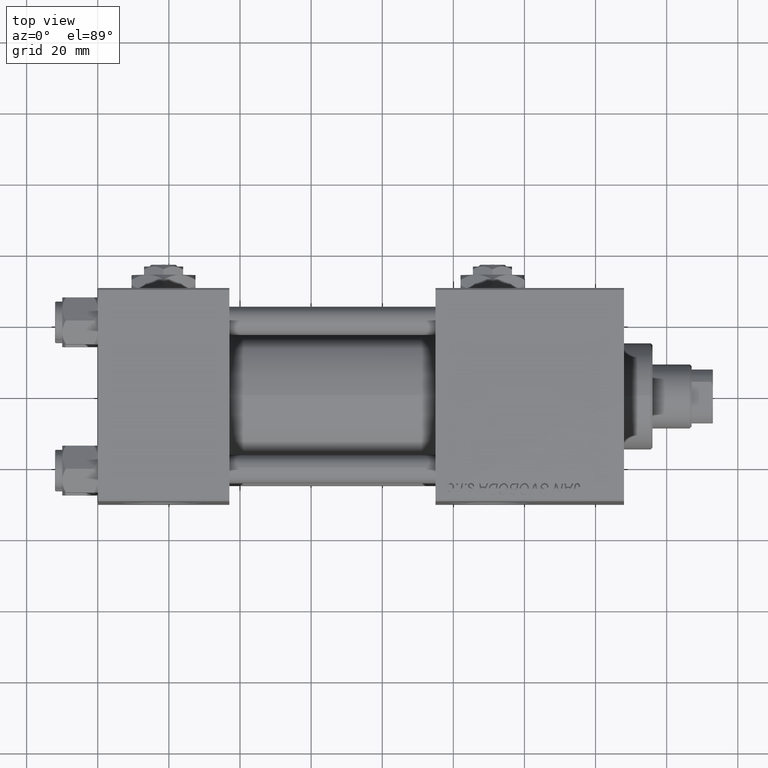
[diagram: clean part render]
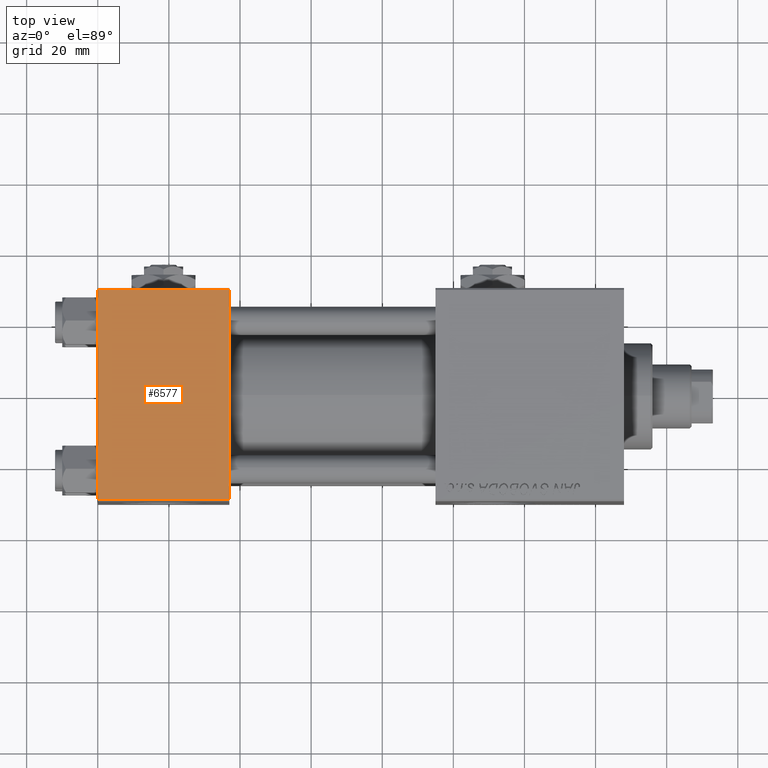
[diagram: same view with one face highlighted and labeled with its STEP entity id]
A machine part, top view. The second image highlights one B-rep face of the part: STEP entity #6577.
In plain terms, the highlighted planar face has unit normal (0, 0, -1).
Its self-contained STEP definition (entity closure, byte-faithful):
#4210 = ORIENTED_EDGE ( 'NONE', *, *, #23585, .T. ) ;
#4269 = VECTOR ( 'NONE', #26903, 1000.000000000000000 ) ;
#5367 = DIRECTION ( 'NONE',  ( 0.000000000000000000, -1.000000000000000000, -1.156482317317871725E-16 ) ) ;
#5754 = CARTESIAN_POINT ( 'NONE',  ( 37.00000000000000000, -29.50000000000000000, 29.99999999999999289 ) ) ;
#6177 = CARTESIAN_POINT ( 'NONE',  ( 0.000000000000000000, 29.49999999999999289, 30.00000000000000000 ) ) ;
#6577 = ADVANCED_FACE ( 'NONE', ( #11134 ), #7955, .F. ) ;
#7955 = PLANE ( 'NONE',  #39475 ) ;
#8033 = CARTESIAN_POINT ( 'NONE',  ( 37.00000000000000000, 29.49999999999999289, 30.00000000000000000 ) ) ;
#9347 = LINE ( 'NONE', #25474, #19514 ) ;
#11134 = FACE_OUTER_BOUND ( 'NONE', #11749, .T. ) ;
#11749 = EDGE_LOOP ( 'NONE', ( #27534, #4210, #52094, #19367 ) ) ;
#12161 = DIRECTION ( 'NONE',  ( 0.000000000000000000, 1.000000000000000000, 1.156482317317871725E-16 ) ) ;
#12767 = LINE ( 'NONE', #24935, #15247 ) ;
#15247 = VECTOR ( 'NONE', #28908, 1000.000000000000000 ) ;
#15451 = VERTEX_POINT ( 'NONE', #8033 ) ;
#15602 = DIRECTION ( 'NONE',  ( 0.000000000000000000, 1.156482317317871725E-16, -1.000000000000000000 ) ) ;
#18309 = VERTEX_POINT ( 'NONE', #37405 ) ;
#19367 = ORIENTED_EDGE ( 'NONE', *, *, #24381, .T. ) ;
#19514 = VECTOR ( 'NONE', #5367, 1000.000000000000000 ) ;
#21600 = LINE ( 'NONE', #29807, #22669 ) ;
#22669 = VECTOR ( 'NONE', #29552, 1000.000000000000000 ) ;
#23585 = EDGE_CURVE ( 'NONE', #18309, #41792, #50939, .T. ) ;
#24381 = EDGE_CURVE ( 'NONE', #15451, #44521, #12767, .T. ) ;
#24935 = CARTESIAN_POINT ( 'NONE',  ( 0.000000000000000000, 29.49999999999999289, 30.00000000000000000 ) ) ;
#25474 = CARTESIAN_POINT ( 'NONE',  ( 37.00000000000000000, 29.99999999999999289, 30.00000000000000000 ) ) ;
#26903 = DIRECTION ( 'NONE',  ( 1.000000000000000000, 0.000000000000000000, 0.000000000000000000 ) ) ;
#27534 = ORIENTED_EDGE ( 'NONE', *, *, #45248, .T. ) ;
#28908 = DIRECTION ( 'NONE',  ( -1.000000000000000000, 0.000000000000000000, 0.000000000000000000 ) ) ;
#29552 = DIRECTION ( 'NONE',  ( 0.000000000000000000, -1.000000000000000000, -1.156482317317871725E-16 ) ) ;
#29744 = EDGE_CURVE ( 'NONE', #15451, #41792, #9347, .T. ) ;
#29807 = CARTESIAN_POINT ( 'NONE',  ( 0.000000000000000000, 29.99999999999999289, 30.00000000000000000 ) ) ;
#31250 = CARTESIAN_POINT ( 'NONE',  ( 37.00000000000000000, 29.99999999999999289, 30.00000000000000000 ) ) ;
#37405 = CARTESIAN_POINT ( 'NONE',  ( 0.000000000000000000, -29.49999999999998579, 29.99999999999999289 ) ) ;
#39475 = AXIS2_PLACEMENT_3D ( 'NONE', #31250, #15602, #12161 ) ;
#41792 = VERTEX_POINT ( 'NONE', #45777 ) ;
#44521 = VERTEX_POINT ( 'NONE', #6177 ) ;
#45248 = EDGE_CURVE ( 'NONE', #44521, #18309, #21600, .T. ) ;
#45777 = CARTESIAN_POINT ( 'NONE',  ( 37.00000000000000000, -29.49999999999998579, 29.99999999999999289 ) ) ;
#50939 = LINE ( 'NONE', #5754, #4269 ) ;
#52094 = ORIENTED_EDGE ( 'NONE', *, *, #29744, .F. ) ;